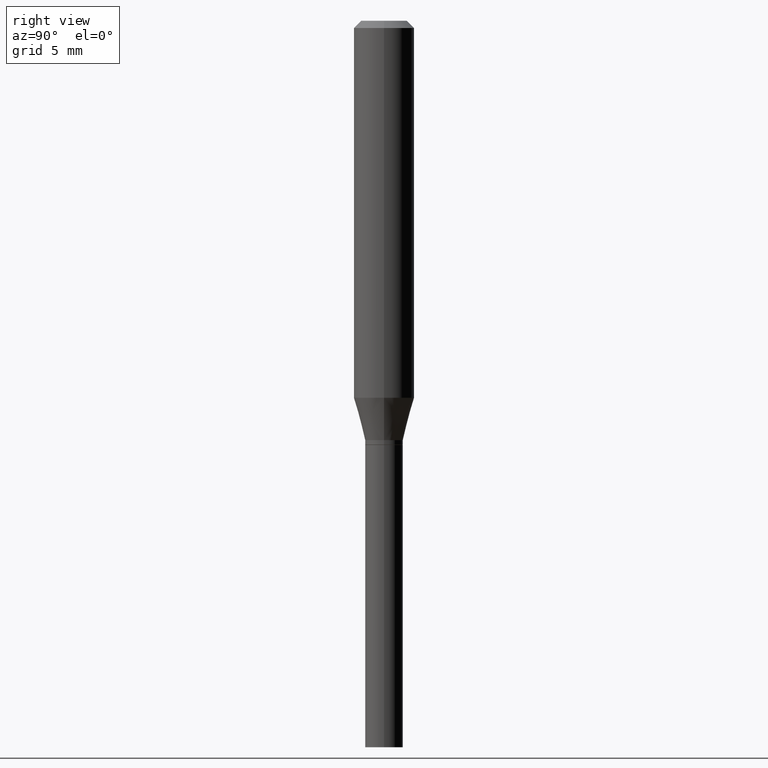
[diagram: clean part render]
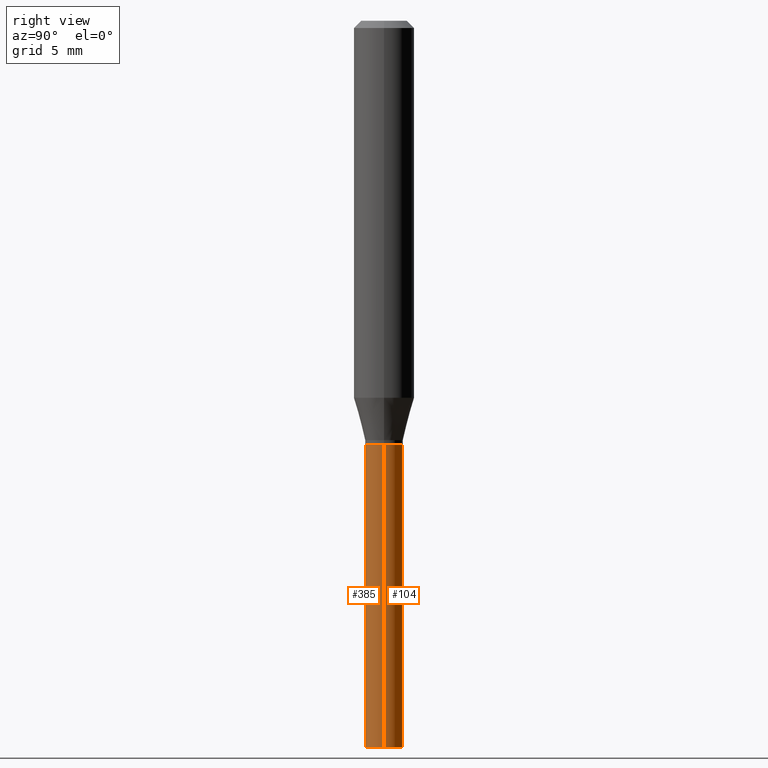
[diagram: same view with one multi-face feature highlighted, each face labeled with its STEP entity id]
A machine part, right view. The highlighted faces form ONE feature: a constant-radius fillet chain: 2 tangent blend faces with common blend radius 0.9906 mm. The faces share edges in the B-rep.
Their STEP definitions:
[1] entity #104 (Cylinder):
#6 = CIRCLE ( 'NONE', #85, 0.03899999999999999994 ) ;
#13 = DIRECTION ( 'NONE',  ( -2.445468806185136877E-29, 3.491481338843145188E-15, 1.000000000000000000 ) ) ;
#31 = VERTEX_POINT ( 'NONE', #156 ) ;
#47 = VERTEX_POINT ( 'NONE', #371 ) ;
#63 = DIRECTION ( 'NONE',  ( -2.445468806185136877E-29, 3.491481338843145188E-15, 1.000000000000000000 ) ) ;
#79 = VECTOR ( 'NONE', #13, 39.37007874015748143 ) ;
#81 = ORIENTED_EDGE ( 'NONE', *, *, #432, .F. ) ;
#85 = AXIS2_PLACEMENT_3D ( 'NONE', #389, #210, #354 ) ;
#104 = ADVANCED_FACE ( 'NONE', ( #171 ), #200, .T. ) ;
#138 = DIRECTION ( 'NONE',  ( 1.000000000000000000, -6.982962677686265922E-15, 4.876176775795935793E-29 ) ) ;
#140 = AXIS2_PLACEMENT_3D ( 'NONE', #398, #180, #150 ) ;
#150 = DIRECTION ( 'NONE',  ( 1.000000000000000000, -6.982962677686258033E-15, 0.000000000000000000 ) ) ;
#155 = LINE ( 'NONE', #223, #79 ) ;
#156 = CARTESIAN_POINT ( 'NONE',  ( 0.03899999999999999994, -3.330873197256360943E-15, -0.8760000000000001119 ) ) ;
#170 = CARTESIAN_POINT ( 'NONE',  ( 0.000000000000000000, 0.000000000000000000, 0.000000000000000000 ) ) ;
#171 = FACE_OUTER_BOUND ( 'NONE', #333, .T. ) ;
#179 = VERTEX_POINT ( 'NONE', #383 ) ;
#180 = DIRECTION ( 'NONE',  ( -2.445468806185136597E-29, 3.491481338843145583E-15, 1.000000000000000000 ) ) ;
#200 = CYLINDRICAL_SURFACE ( 'NONE', #323, 0.03899999999999999994 ) ;
#210 = DIRECTION ( 'NONE',  ( -2.445468806185136597E-29, 3.491481338843145583E-15, 1.000000000000000000 ) ) ;
#223 = CARTESIAN_POINT ( 'NONE',  ( 0.03899999999999999994, -2.723355444297643682E-16, 1.901708942560414931E-30 ) ) ;
#237 = LINE ( 'NONE', #340, #239 ) ;
#239 = VECTOR ( 'NONE', #63, 39.37007874015748143 ) ;
#254 = EDGE_CURVE ( 'NONE', #439, #47, #237, .T. ) ;
#258 = ORIENTED_EDGE ( 'NONE', *, *, #254, .T. ) ;
#275 = DIRECTION ( 'NONE',  ( -2.445468806185136597E-29, 3.491481338843145583E-15, 1.000000000000000000 ) ) ;
#297 = CARTESIAN_POINT ( 'NONE',  ( -0.03899999999999999994, -3.870768163599218033E-15, -1.500000000000000222 ) ) ;
#302 = EDGE_CURVE ( 'NONE', #179, #439, #411, .T. ) ;
#323 = AXIS2_PLACEMENT_3D ( 'NONE', #170, #275, #138 ) ;
#333 = EDGE_LOOP ( 'NONE', ( #462, #258, #451, #81 ) ) ;
#335 = EDGE_CURVE ( 'NONE', #31, #47, #6, .T. ) ;
#340 = CARTESIAN_POINT ( 'NONE',  ( -0.03899999999999999994, 2.771116669464390721E-16, -1.918384685199413078E-30 ) ) ;
#354 = DIRECTION ( 'NONE',  ( 1.000000000000000000, -6.982962677686270655E-15, 0.000000000000000000 ) ) ;
#371 = CARTESIAN_POINT ( 'NONE',  ( -0.03899999999999999994, -3.870768163599218033E-15, -0.8760000000000001119 ) ) ;
#383 = CARTESIAN_POINT ( 'NONE',  ( 0.03899999999999999994, -5.509557552694482989E-15, -1.500000000000000222 ) ) ;
#389 = CARTESIAN_POINT ( 'NONE',  ( 2.142230674218180125E-29, -3.058537652826596131E-15, -0.8760000000000001119 ) ) ;
#398 = CARTESIAN_POINT ( 'NONE',  ( 3.668203209277704895E-29, -5.237222008264718177E-15, -1.500000000000000222 ) ) ;
#411 = CIRCLE ( 'NONE', #140, 0.03899999999999999994 ) ;
#432 = EDGE_CURVE ( 'NONE', #179, #31, #155, .T. ) ;
#439 = VERTEX_POINT ( 'NONE', #297 ) ;
#451 = ORIENTED_EDGE ( 'NONE', *, *, #335, .F. ) ;
#462 = ORIENTED_EDGE ( 'NONE', *, *, #302, .T. ) ;
[2] entity #385 (Cylinder):
#13 = DIRECTION ( 'NONE',  ( -2.445468806185136877E-29, 3.491481338843145188E-15, 1.000000000000000000 ) ) ;
#28 = ORIENTED_EDGE ( 'NONE', *, *, #432, .T. ) ;
#31 = VERTEX_POINT ( 'NONE', #156 ) ;
#35 = EDGE_CURVE ( 'NONE', #439, #179, #226, .T. ) ;
#39 = ORIENTED_EDGE ( 'NONE', *, *, #254, .F. ) ;
#47 = VERTEX_POINT ( 'NONE', #371 ) ;
#63 = DIRECTION ( 'NONE',  ( -2.445468806185136877E-29, 3.491481338843145188E-15, 1.000000000000000000 ) ) ;
#79 = VECTOR ( 'NONE', #13, 39.37007874015748143 ) ;
#107 = DIRECTION ( 'NONE',  ( -2.445468806185136597E-29, 3.491481338843145583E-15, 1.000000000000000000 ) ) ;
#117 = EDGE_LOOP ( 'NONE', ( #39, #433, #28, #420 ) ) ;
#122 = AXIS2_PLACEMENT_3D ( 'NONE', #149, #437, #255 ) ;
#142 = FACE_OUTER_BOUND ( 'NONE', #117, .T. ) ;
#149 = CARTESIAN_POINT ( 'NONE',  ( 3.668203209277704895E-29, -5.237222008264718177E-15, -1.500000000000000222 ) ) ;
#155 = LINE ( 'NONE', #223, #79 ) ;
#156 = CARTESIAN_POINT ( 'NONE',  ( 0.03899999999999999994, -3.330873197256360943E-15, -0.8760000000000001119 ) ) ;
#179 = VERTEX_POINT ( 'NONE', #383 ) ;
#223 = CARTESIAN_POINT ( 'NONE',  ( 0.03899999999999999994, -2.723355444297643682E-16, 1.901708942560414931E-30 ) ) ;
#226 = CIRCLE ( 'NONE', #122, 0.03899999999999999994 ) ;
#237 = LINE ( 'NONE', #340, #239 ) ;
#239 = VECTOR ( 'NONE', #63, 39.37007874015748143 ) ;
#254 = EDGE_CURVE ( 'NONE', #439, #47, #237, .T. ) ;
#255 = DIRECTION ( 'NONE',  ( 1.000000000000000000, -6.982962677686258033E-15, 0.000000000000000000 ) ) ;
#256 = DIRECTION ( 'NONE',  ( 1.000000000000000000, -6.982962677686270655E-15, 0.000000000000000000 ) ) ;
#284 = CYLINDRICAL_SURFACE ( 'NONE', #287, 0.03899999999999999994 ) ;
#287 = AXIS2_PLACEMENT_3D ( 'NONE', #394, #290, #325 ) ;
#290 = DIRECTION ( 'NONE',  ( -2.445468806185136597E-29, 3.491481338843145583E-15, 1.000000000000000000 ) ) ;
#291 = EDGE_CURVE ( 'NONE', #47, #31, #446, .T. ) ;
#297 = CARTESIAN_POINT ( 'NONE',  ( -0.03899999999999999994, -3.870768163599218033E-15, -1.500000000000000222 ) ) ;
#307 = AXIS2_PLACEMENT_3D ( 'NONE', #317, #107, #256 ) ;
#317 = CARTESIAN_POINT ( 'NONE',  ( 2.142230674218180125E-29, -3.058537652826596131E-15, -0.8760000000000001119 ) ) ;
#325 = DIRECTION ( 'NONE',  ( 1.000000000000000000, -6.982962677686265922E-15, 4.876176775795935793E-29 ) ) ;
#340 = CARTESIAN_POINT ( 'NONE',  ( -0.03899999999999999994, 2.771116669464390721E-16, -1.918384685199413078E-30 ) ) ;
#371 = CARTESIAN_POINT ( 'NONE',  ( -0.03899999999999999994, -3.870768163599218033E-15, -0.8760000000000001119 ) ) ;
#383 = CARTESIAN_POINT ( 'NONE',  ( 0.03899999999999999994, -5.509557552694482989E-15, -1.500000000000000222 ) ) ;
#385 = ADVANCED_FACE ( 'NONE', ( #142 ), #284, .T. ) ;
#394 = CARTESIAN_POINT ( 'NONE',  ( 0.000000000000000000, 0.000000000000000000, 0.000000000000000000 ) ) ;
#420 = ORIENTED_EDGE ( 'NONE', *, *, #291, .F. ) ;
#432 = EDGE_CURVE ( 'NONE', #179, #31, #155, .T. ) ;
#433 = ORIENTED_EDGE ( 'NONE', *, *, #35, .T. ) ;
#437 = DIRECTION ( 'NONE',  ( -2.445468806185136597E-29, 3.491481338843145583E-15, 1.000000000000000000 ) ) ;
#439 = VERTEX_POINT ( 'NONE', #297 ) ;
#446 = CIRCLE ( 'NONE', #307, 0.03899999999999999994 ) ;